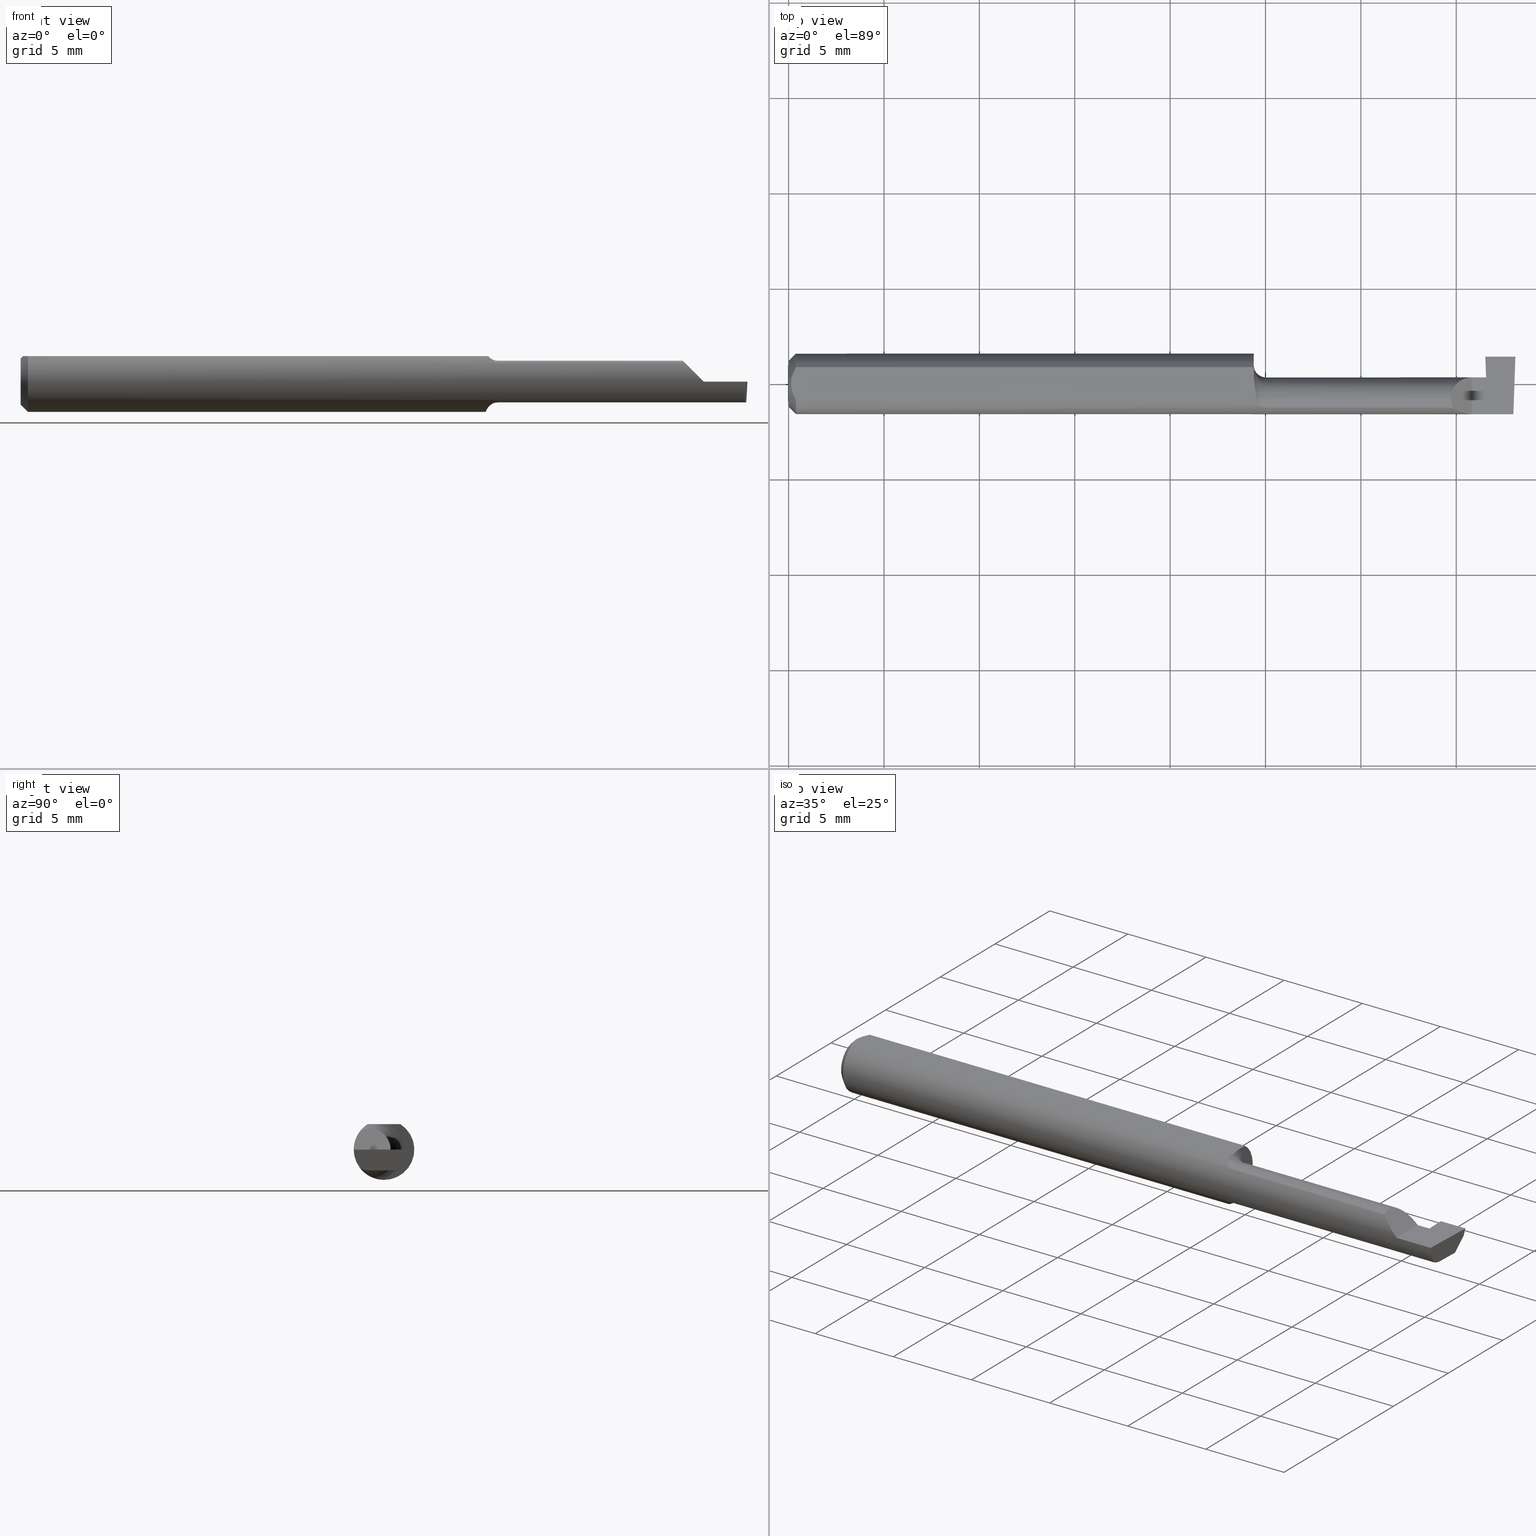
[diagram: canonical four-view strip — front | top / right | iso, engineering-drawing reading convention]
A machine part, canonical four-view strip (front | top / right | iso — engineering-drawing reading convention). The complete STEP part file that produces these views, byte-faithful:
ISO-10303-21;
HEADER;
FILE_DESCRIPTION (( 'STEP AP203' ),
    '1' );
FILE_NAME ('220578-GT061-8.STEP',
    '2024-07-17T22:20:59',
    ( '' ),
    ( '' ),
    'SwSTEP 2.0',
    'SolidWorks 2024',
    '' );
FILE_SCHEMA (( 'CONFIG_CONTROL_DESIGN' ));
ENDSEC;

DATA;
#1 = DIRECTION ( 'NONE',  ( -1.000000000000000000, -0.000000000000000000, -0.000000000000000000 ) ) ;
#2 = EDGE_CURVE ( 'NONE', #398, #244, #697, .T. ) ;
#3 = CIRCLE ( 'NONE', #15, 0.04300000000000000350 ) ;
#4 = LINE ( 'NONE', #331, #316 ) ;
#5 = APPROVAL_PERSON_ORGANIZATION ( #612, #651, #111 ) ;
#6 = DIRECTION ( 'NONE',  ( 1.000000000000000000, 0.000000000000000000, 0.000000000000000000 ) ) ;
#7 = VECTOR ( 'NONE', #10, 39.37007874015748143 ) ;
#8 = EDGE_LOOP ( 'NONE', ( #175, #228, #355, #48, #468, #635 ) ) ;
#9 = APPROVAL_STATUS ( 'not_yet_approved' ) ;
#10 = DIRECTION ( 'NONE',  ( -0.000000000000000000, 1.000000000000000000, -0.000000000000000000 ) ) ;
#11 = ORIENTED_EDGE ( 'NONE', *, *, #75, .F. ) ;
#12 = CARTESIAN_POINT ( 'NONE',  ( 1.371996840119888761, -0.04961864406779655651, 0.03800315988011148532 ) ) ;
#13 = ORIENTED_EDGE ( 'NONE', *, *, #402, .F. ) ;
#14 = SHAPE_DEFINITION_REPRESENTATION ( #22, #440 ) ;
#15 = AXIS2_PLACEMENT_3D ( 'NONE', #339, #213, #607 ) ;
#16 = EDGE_CURVE ( 'NONE', #155, #167, #554, .T. ) ;
#17 = ORIENTED_EDGE ( 'NONE', *, *, #356, .T. ) ;
#18 = EDGE_CURVE ( 'NONE', #33, #244, #94, .T. ) ;
#19 = COORDINATED_UNIVERSAL_TIME_OFFSET ( 8, 0, .BEHIND. ) ;
#20 = CARTESIAN_POINT ( 'NONE',  ( 0.9850000000000000977, -0.02949999999999999498, -0.04300000000000000350 ) ) ;
#21 = CARTESIAN_POINT ( 'NONE',  ( 1.400000000000000133, 0.05140441672027315501, -0.01400000000000000203 ) ) ;
#22 = PRODUCT_DEFINITION_SHAPE ( 'NONE', 'NONE',  #112 ) ;
#23 = COORDINATED_UNIVERSAL_TIME_OFFSET ( 8, 0, .BEHIND. ) ;
#24 = CARTESIAN_POINT ( 'NONE',  ( 0.01499999999999999944, 0.000000000000000000, 0.000000000000000000 ) ) ;
#25 = ORIENTED_EDGE ( 'NONE', *, *, #2, .T. ) ;
#26 = DIRECTION ( 'NONE',  ( -1.000000000000000000, -0.000000000000000000, -0.000000000000000000 ) ) ;
#27 = LINE ( 'NONE', #97, #556 ) ;
#28 = ORIENTED_EDGE ( 'NONE', *, *, #679, .F. ) ;
#29 = CC_DESIGN_SECURITY_CLASSIFICATION ( #587, ( #610 ) ) ;
#30 = AXIS2_PLACEMENT_3D ( 'NONE', #105, #332, #441 ) ;
#31 = CARTESIAN_POINT ( 'NONE',  ( 0.9613937318049208258, -0.02109576779706038435, -0.05901971984239203634 ) ) ;
#32 = ORIENTED_EDGE ( 'NONE', *, *, #196, .T. ) ;
#33 = VERTEX_POINT ( 'NONE', #638 ) ;
#34 = CARTESIAN_POINT ( 'NONE',  ( 1.495429628496687924, -0.04338920303173532389, -0.04130098846439800991 ) ) ;
#35 = CARTESIAN_POINT ( 'NONE',  ( 1.438667021569911331, 0.05140441672027315501, -0.01399999999999999856 ) ) ;
#36 = CARTESIAN_POINT ( 'NONE',  ( 0.9653849547540671594, -0.02950000000000013375, 0.05250000000000000500 ) ) ;
#37 = CARTESIAN_POINT ( 'NONE',  ( 1.383004118162293850, -0.05804917164768785831, 0.02699588183770621277 ) ) ;
#38 = ADVANCED_FACE ( 'NONE', ( #595 ), #147, .F. ) ;
#39 = AXIS2_PLACEMENT_3D ( 'NONE', #670, #67, #634 ) ;
#40 = VERTEX_POINT ( 'NONE', #263 ) ;
#41 = CARTESIAN_POINT ( 'NONE',  ( 1.495298500941084185, -0.04961864406779661202, -0.03800315988011145063 ) ) ;
#42 = DIRECTION ( 'NONE',  ( -1.000000000000000000, -0.000000000000000000, -0.000000000000000000 ) ) ;
#43 = CARTESIAN_POINT ( 'NONE',  ( 0.9850000000000000977, -0.02949999999999999498, -0.06800000000000000488 ) ) ;
#44 = APPROVAL ( #451, 'UNSPECIFIED' ) ;
#45 = EDGE_LOOP ( 'NONE', ( #82, #51, #200, #209, #179 ) ) ;
#46 = CARTESIAN_POINT ( 'NONE',  ( 0.000000000000000000, 0.000000000000000000, 0.000000000000000000 ) ) ;
#47 = DIRECTION ( 'NONE',  ( 0.7071067811865474617, 0.000000000000000000, -0.7071067811865475727 ) ) ;
#48 = ORIENTED_EDGE ( 'NONE', *, *, #588, .F. ) ;
#49 = EDGE_CURVE ( 'NONE', #33, #185, #143, .T. ) ;
#50 = LINE ( 'NONE', #146, #268 ) ;
#51 = ORIENTED_EDGE ( 'NONE', *, *, #625, .F. ) ;
#52 = CC_DESIGN_APPROVAL ( #376, ( #587 ) ) ;
#53 = AXIS2_PLACEMENT_3D ( 'NONE', #537, #249, #314 ) ;
#54 = CYLINDRICAL_SURFACE ( 'NONE', #619, 0.04300000000000000350 ) ;
#55 = CARTESIAN_POINT ( 'NONE',  ( 1.500000000000000222, -0.06250000000000001388, 0.05250000000000000500 ) ) ;
#56 = COORDINATED_UNIVERSAL_TIME_OFFSET ( 8, 0, .BEHIND. ) ;
#57 = CARTESIAN_POINT ( 'NONE',  ( 1.409999999999999920, -0.1000000000000000056, 1.102182119232617911E-17 ) ) ;
#58 = ORIENTED_EDGE ( 'NONE', *, *, #659, .F. ) ;
#59 = CALENDAR_DATE ( 2024, 17, 7 ) ;
#60 = DIRECTION ( 'NONE',  ( 1.000000000000000000, 0.000000000000000000, 0.000000000000000000 ) ) ;
#61 = VECTOR ( 'NONE', #181, 39.37007874015748143 ) ;
#62 = ORIENTED_EDGE ( 'NONE', *, *, #557, .T. ) ;
#63 = CARTESIAN_POINT ( 'NONE',  ( 0.9850000000000000977, -0.02950000000000000192, 0.06800000000000000488 ) ) ;
#64 = DIRECTION ( 'NONE',  ( 0.000000000000000000, -0.000000000000000000, 1.000000000000000000 ) ) ;
#65 = ORIENTED_EDGE ( 'NONE', *, *, #689, .F. ) ;
#66 = EDGE_CURVE ( 'NONE', #709, #204, #383, .T. ) ;
#67 = DIRECTION ( 'NONE',  ( -0.9990483607430195034, 0.03488753751661637786, 0.02617694830785934762 ) ) ;
#68 = EDGE_LOOP ( 'NONE', ( #649, #407 ) ) ;
#69 = CARTESIAN_POINT ( 'NONE',  ( 1.400000000000000133, 0.05650000000000000161, -7.164183775012044310E-19 ) ) ;
#70 = ORIENTED_EDGE ( 'NONE', *, *, #689, .T. ) ;
#71 = DIRECTION ( 'NONE',  ( -0.03487823687206274836, -0.001217974870087546639, 0.9993908270190957621 ) ) ;
#72 = CARTESIAN_POINT ( 'NONE',  ( 0.004999999999989314207, 8.235553591830799656E-16, 0.05250000000000000500 ) ) ;
#73 = ORIENTED_EDGE ( 'NONE', *, *, #49, .T. ) ;
#74 = CARTESIAN_POINT ( 'NONE',  ( 1.367000000000000215, -0.02950000000000000192, 0.04300000000000000350 ) ) ;
#75 = EDGE_CURVE ( 'NONE', #358, #398, #630, .T. ) ;
#76 = PERSON_AND_ORGANIZATION ( #79, #671 ) ;
#77 = CARTESIAN_POINT ( 'NONE',  ( 0.009676924495017957123, -0.02328413057436891712, 0.05250000000000001193 ) ) ;
#78 = VERTEX_POINT ( 'NONE', #592 ) ;
#79 = PERSON ( 'UNSPECIFIED', 'UNSPECIFIED', 'UNSPECIFIED', ('UNSPECIFIED'), ('UNSPECIFIED'), ('UNSPECIFIED') ) ;
#80 = PLANE ( 'NONE',  #141 ) ;
#81 = CIRCLE ( 'NONE', #176, 0.04749999999999999362 ) ;
#82 = ORIENTED_EDGE ( 'NONE', *, *, #501, .F. ) ;
#83 = VECTOR ( 'NONE', #6, 39.37007874015748143 ) ;
#84 = VECTOR ( 'NONE', #251, 39.37007874015748143 ) ;
#85 = CARTESIAN_POINT ( 'NONE',  ( 1.439743911843603064, 0.05656089874350439528, -0.04996954135095479921 ) ) ;
#86 = CARTESIAN_POINT ( 'NONE',  ( 0.9600000000000001865, -0.02950000000000000192, 0.000000000000000000 ) ) ;
#87 = EDGE_LOOP ( 'NONE', ( #65, #599, #534, #528 ) ) ;
#88 = EDGE_CURVE ( 'NONE', #171, #476, #164, .T. ) ;
#89 = CARTESIAN_POINT ( 'NONE',  ( 0.000000000000000000, 0.03391164991562636150, 0.05249999999999998418 ) ) ;
#90 = DIRECTION ( 'NONE',  ( 1.000000000000000000, 0.000000000000000000, 0.000000000000000000 ) ) ;
#91 = LINE ( 'NONE', #550, #338 ) ;
#92 = FACE_OUTER_BOUND ( 'NONE', #512, .T. ) ;
#93 = CARTESIAN_POINT ( 'NONE',  ( 1.384811183182043548, 0.01350000000000000332, 0.02518881681795692024 ) ) ;
#94 = LINE ( 'NONE', #642, #140 ) ;
#95 = CLOSED_SHELL ( 'NONE', ( #218, #478, #142, #333, #664, #344, #163, #245, #271, #636, #153, #369, #436, #205, #538, #678, #389, #455, #38, #347 ) ) ;
#96 = VERTEX_POINT ( 'NONE', #308 ) ;
#97 = CARTESIAN_POINT ( 'NONE',  ( 0.9600000000000001865, 0.01349999999999999811, 6.613092715395697606E-17 ) ) ;
#98 = DIRECTION ( 'NONE',  ( -1.000000000000000000, -0.000000000000000000, -0.000000000000000000 ) ) ;
#99 = ORIENTED_EDGE ( 'NONE', *, *, #536, .F. ) ;
#100 = EDGE_CURVE ( 'NONE', #96, #283, #605, .T. ) ;
#101 = ORIENTED_EDGE ( 'NONE', *, *, #290, .F. ) ;
#102 = CARTESIAN_POINT ( 'NONE',  ( 0.9600000000000001865, -0.02950000000000000192, 0.04300000000000000350 ) ) ;
#103 = DIRECTION ( 'NONE',  ( 0.03487821100177018047, 0.000000000000000000, -0.9993915701051895306 ) ) ;
#104 =( NAMED_UNIT ( * ) PLANE_ANGLE_UNIT ( ) SI_UNIT ( $, .RADIAN. ) );
#105 = CARTESIAN_POINT ( 'NONE',  ( 1.409999999999999920, -0.1000000000000000056, 1.102182119232617911E-17 ) ) ;
#106 = CARTESIAN_POINT ( 'NONE',  ( 1.438000000000000167, 0.05650000000000000161, -7.164183775012044310E-19 ) ) ;
#107 = PLANE ( 'NONE',  #362 ) ;
#108 = CARTESIAN_POINT ( 'NONE',  ( 0.9652401474686986838, -0.03391164991562652803, 0.05250000000000000500 ) ) ;
#109 = EDGE_CURVE ( 'NONE', #617, #337, #692, .T. ) ;
#110 = ORIENTED_EDGE ( 'NONE', *, *, #500, .T. ) ;
#111 = APPROVAL_ROLE ( '' ) ;
#112 = PRODUCT_DEFINITION ( 'UNKNOWN', '', #610, #442 ) ;
#113 = CARTESIAN_POINT ( 'NONE',  ( 1.499269797026868467, 0.04837060006457220840, -0.01703381665570093823 ) ) ;
#114 =( BOUNDED_CURVE ( )  B_SPLINE_CURVE ( 3, ( #542, #601, #93, #604 ),
 .UNSPECIFIED., .F., .T. ) 
 B_SPLINE_CURVE_WITH_KNOTS ( ( 4, 4 ),
 ( 0.000000000000000000, 1.570796326794896558 ),
 .UNSPECIFIED. ) 
 CURVE ( )  GEOMETRIC_REPRESENTATION_ITEM ( )  RATIONAL_B_SPLINE_CURVE ( ( 1.000000000000000000, 0.8047378541243649375, 0.8047378541243649375, 1.000000000000000000 ) ) 
 REPRESENTATION_ITEM ( '' )  );
#115 = ORIENTED_EDGE ( 'NONE', *, *, #16, .T. ) ;
#116 = DIRECTION ( 'NONE',  ( 1.000000000000000000, 0.000000000000000000, 0.000000000000000000 ) ) ;
#117 = CARTESIAN_POINT ( 'NONE',  ( 1.440999524473456361, -0.02950000000000000192, -0.04300000000000001044 ) ) ;
#118 = AXIS2_PLACEMENT_3D ( 'NONE', #24, #680, #242 ) ;
#119 = ORIENTED_EDGE ( 'NONE', *, *, #477, .T. ) ;
#120 = EDGE_CURVE ( 'NONE', #705, #413, #91, .T. ) ;
#121 = CALENDAR_DATE ( 2024, 17, 7 ) ;
#122 = CARTESIAN_POINT ( 'NONE',  ( 0.9798934400651082566, -0.04899547455819867198, 0.03883101267846624655 ) ) ;
#123 = EDGE_LOOP ( 'NONE', ( #573, #598, #437, #193, #446 ) ) ;
#124 = APPROVAL_DATE_TIME ( #287, #44 ) ;
#125 = DIRECTION ( 'NONE',  ( -0.03489949670250192676, -0.9993908270190955401, 0.000000000000000000 ) ) ;
#126 = ORIENTED_EDGE ( 'NONE', *, *, #290, .T. ) ;
#127 = AXIS2_PLACEMENT_3D ( 'NONE', #427, #548, #259 ) ;
#128 = CARTESIAN_POINT ( 'NONE',  ( 0.9850000000000000977, -0.04961864406779661202, 0.03800315988011145063 ) ) ;
#129 = AXIS2_PLACEMENT_3D ( 'NONE', #208, #502, #668 ) ;
#130 = ORIENTED_EDGE ( 'NONE', *, *, #300, .T. ) ;
#131 = CARTESIAN_POINT ( 'NONE',  ( 1.371996840119888761, -0.04961864406779655651, 0.03800315988011148532 ) ) ;
#132 = FACE_OUTER_BOUND ( 'NONE', #285, .T. ) ;
#133 = B_SPLINE_CURVE_WITH_KNOTS ( 'NONE', 3,
 ( #370, #434, #31, #307, #320, #246 ),
 .UNSPECIFIED., .F., .F.,
 ( 4, 2, 4 ),
 ( 0.0009204511414458096822, 0.001283705467946031535, 0.001646959794446253497 ),
 .UNSPECIFIED. ) ;
#134 = ORIENTED_EDGE ( 'NONE', *, *, #120, .T. ) ;
#135 = DIRECTION ( 'NONE',  ( -0.04472628571147610477, 0.3416778765727995215, 0.9387522506109683418 ) ) ;
#136 = ORIENTED_EDGE ( 'NONE', *, *, #401, .T. ) ;
#137 = CARTESIAN_POINT ( 'NONE',  ( 0.9850000000000000977, -0.02950000000000000192, 0.04300000000000000350 ) ) ;
#138 = AXIS2_PLACEMENT_3D ( 'NONE', #710, #353, #580 ) ;
#139 = CARTESIAN_POINT ( 'NONE',  ( 1.441001355602298473, -1.425152629442045127, -0.04475337468571159716 ) ) ;
#140 = VECTOR ( 'NONE', #266, 39.37007874015748143 ) ;
#141 = AXIS2_PLACEMENT_3D ( 'NONE', #85, #194, #540 ) ;
#142 = ADVANCED_FACE ( 'NONE', ( #260 ), #267, .F. ) ;
#143 =( BOUNDED_CURVE ( )  B_SPLINE_CURVE ( 3, ( #364, #708, #195, #154 ),
 .UNSPECIFIED., .F., .T. ) 
 B_SPLINE_CURVE_WITH_KNOTS ( ( 4, 4 ),
 ( 6.273290845822960371, 6.925979714601155912 ),
 .UNSPECIFIED. ) 
 CURVE ( )  GEOMETRIC_REPRESENTATION_ITEM ( )  RATIONAL_B_SPLINE_CURVE ( ( 1.000000000000000000, 0.9648137202604427642, 0.9648137202604427642, 1.000000000000000000 ) ) 
 REPRESENTATION_ITEM ( '' )  );
#144 = EDGE_CURVE ( 'NONE', #617, #571, #704, .T. ) ;
#145 = CARTESIAN_POINT ( 'NONE',  ( 0.9652271794864765164, -0.03459070527865117789, -0.05237439105173812698 ) ) ;
#146 = CARTESIAN_POINT ( 'NONE',  ( 2.249639673992780117E-32, -0.06250000000000000000, 1.836970198721027469E-16 ) ) ;
#147 = PLANE ( 'NONE',  #350 ) ;
#148 = CYLINDRICAL_SURFACE ( 'NONE', #53, 0.04300000000000000350 ) ;
#149 = CARTESIAN_POINT ( 'NONE',  ( 1.494536378329570425, -0.06245432188394240552, -0.04998286624877784634 ) ) ;
#150 = ORIENTED_EDGE ( 'NONE', *, *, #701, .F. ) ;
#151 = CARTESIAN_POINT ( 'NONE',  ( 1.494541555929521870, -0.09980938693283122887, 6.684666059235883717E-19 ) ) ;
#152 = CARTESIAN_POINT ( 'NONE',  ( 0.01499999999999999771, 0.03391164991562633374, 0.05250000000000000500 ) ) ;
#153 = ADVANCED_FACE ( 'NONE', ( #220 ), #107, .F. ) ;
#154 = CARTESIAN_POINT ( 'NONE',  ( 1.495842932763845390, -0.06249997390100387601, -5.711719386471155157E-05 ) ) ;
#155 = VERTEX_POINT ( 'NONE', #276 ) ;
#156 = CARTESIAN_POINT ( 'NONE',  ( 0.9600000000000001865, 0.1134999999999999759, 0.000000000000000000 ) ) ;
#157 = CARTESIAN_POINT ( 'NONE',  ( 1.497682675024521792, 0.02240441672027304598, -0.04300000000000001044 ) ) ;
#158 = ORIENTED_EDGE ( 'NONE', *, *, #300, .F. ) ;
#159 = CARTESIAN_POINT ( 'NONE',  ( 0.9600000000000001865, 0.01371747331809206050, 0.05250000000000000500 ) ) ;
#160 = DIRECTION ( 'NONE',  ( 1.000000000000000000, 0.000000000000000000, 0.000000000000000000 ) ) ;
#161 = CARTESIAN_POINT ( 'NONE',  ( 0.9653849547540671594, -0.02950000000000013375, 0.05250000000000000500 ) ) ;
#162 = CARTESIAN_POINT ( 'NONE',  ( 1.440692425072330529, 0.02240441672027304251, -0.04300000000000001044 ) ) ;
#163 = ADVANCED_FACE ( 'NONE', ( #555 ), #327, .T. ) ;
#164 = CIRCLE ( 'NONE', #303, 0.06800000000000000488 ) ;
#165 = MECHANICAL_CONTEXT ( 'NONE', #695, 'mechanical' ) ;
#166 = CARTESIAN_POINT ( 'NONE',  ( 1.500000000000000222, 0.02240441672027303557, -0.04300000000000001044 ) ) ;
#167 = VERTEX_POINT ( 'NONE', #108 ) ;
#168 = CC_DESIGN_DATE_AND_TIME_ASSIGNMENT ( #675, #626, ( #587 ) ) ;
#169 =( NAMED_UNIT ( * ) SI_UNIT ( $, .STERADIAN. ) SOLID_ANGLE_UNIT ( ) );
#170 = LINE ( 'NONE', #387, #379 ) ;
#171 = VERTEX_POINT ( 'NONE', #227 ) ;
#172 = CARTESIAN_POINT ( 'NONE',  ( 0.9640045281090322549, -0.01491326039667815496, 0.05250000000000001193 ) ) ;
#173 = DIRECTION ( 'NONE',  ( -0.03654090288697374456, -0.3417917279781193529, -0.9390650547762576794 ) ) ;
#174 = EDGE_CURVE ( 'NONE', #516, #337, #270, .T. ) ;
#175 = ORIENTED_EDGE ( 'NONE', *, *, #217, .F. ) ;
#176 = AXIS2_PLACEMENT_3D ( 'NONE', #296, #241, #686 ) ;
#177 = VECTOR ( 'NONE', #616, 39.37007874015748854 ) ;
#178 = VECTOR ( 'NONE', #71, 39.37007874015748854 ) ;
#179 = ORIENTED_EDGE ( 'NONE', *, *, #2, .F. ) ;
#180 = APPROVAL_STATUS ( 'not_yet_approved' ) ;
#181 = DIRECTION ( 'NONE',  ( 0.7071067811865474617, 8.659560562354934091E-17, 0.7071067811865475727 ) ) ;
#182 = ORIENTED_EDGE ( 'NONE', *, *, #120, .F. ) ;
#183 = CARTESIAN_POINT ( 'NONE',  ( 1.440999524473456361, -0.02950000000000000192, -0.04300000000000001044 ) ) ;
#184 = B_SPLINE_CURVE_WITH_KNOTS ( 'NONE', 3,
 ( #342, #620, #297, #357, #684, #122, #404, #128 ),
 .UNSPECIFIED., .F., .F.,
 ( 4, 2, 2, 4 ),
 ( 3.888235372646800376E-07, 0.0003893917635814237842, 0.0005838932336035033369, 0.0007783947036255828896 ),
 .UNSPECIFIED. ) ;
#185 = VERTEX_POINT ( 'NONE', #565 ) ;
#186 =( GEOMETRIC_REPRESENTATION_CONTEXT ( 3 ) GLOBAL_UNCERTAINTY_ASSIGNED_CONTEXT ( ( #657 ) ) GLOBAL_UNIT_ASSIGNED_CONTEXT ( ( #385, #104, #169 ) ) REPRESENTATION_CONTEXT ( 'NONE', 'WORKASPACE' ) );
#187 = FACE_OUTER_BOUND ( 'NONE', #685, .T. ) ;
#188 = EDGE_LOOP ( 'NONE', ( #115, #566, #392, #457, #110, #264, #136 ) ) ;
#189 = DIRECTION ( 'NONE',  ( 0.000000000000000000, 0.000000000000000000, 1.000000000000000000 ) ) ;
#190 = APPLICATION_CONTEXT ( 'configuration controlled 3d designs of mechanical parts and assemblies' ) ;
#191 = ORIENTED_EDGE ( 'NONE', *, *, #411, .F. ) ;
#192 = DIRECTION ( 'NONE',  ( 0.000000000000000000, 0.000000000000000000, 1.000000000000000000 ) ) ;
#193 = ORIENTED_EDGE ( 'NONE', *, *, #269, .T. ) ;
#194 = DIRECTION ( 'NONE',  ( 0.9987827668610290699, 0.03485699000042918883, 0.03489949669461413218 ) ) ;
#195 = CARTESIAN_POINT ( 'NONE',  ( 1.495480616183712197, -0.06248732152722600436, -0.01390186301200442912 ) ) ;
#196 = EDGE_CURVE ( 'NONE', #413, #453, #170, .T. ) ;
#197 = CARTESIAN_POINT ( 'NONE',  ( 0.9790847360483329043, -0.04877754693342478687, -0.03912413147191610985 ) ) ;
#198 = DIRECTION ( 'NONE',  ( 0.000000000000000000, 0.000000000000000000, 1.000000000000000000 ) ) ;
#199 = CIRCLE ( 'NONE', #118, 0.06250000000000000000 ) ;
#200 = ORIENTED_EDGE ( 'NONE', *, *, #477, .F. ) ;
#201 = DIRECTION ( 'NONE',  ( -1.000000000000000000, -0.000000000000000000, -0.000000000000000000 ) ) ;
#202 = DIRECTION ( 'NONE',  ( -0.000000000000000000, 0.000000000000000000, 1.000000000000000000 ) ) ;
#203 = B_SPLINE_CURVE_WITH_KNOTS ( 'NONE', 3,
 ( #694, #206, #197, #430, #547, #640, #145, #365 ),
 .UNSPECIFIED., .F., .F.,
 ( 4, 2, 2, 4 ),
 ( 1.967049449814725299E-07, 0.0002302603140701871016, 0.0004603239231953926949, 0.0009204511414458096822 ),
 .UNSPECIFIED. ) ;
#204 = VERTEX_POINT ( 'NONE', #397 ) ;
#205 = ADVANCED_FACE ( 'NONE', ( #452 ), #713, .T. ) ;
#206 = CARTESIAN_POINT ( 'NONE',  ( 0.9819304295622112155, -0.04961864406779661202, -0.03800315988011144369 ) ) ;
#207 = CARTESIAN_POINT ( 'NONE',  ( 0.9653849547540669374, -0.03023591544404562875, 0.05250000000000001193 ) ) ;
#208 = CARTESIAN_POINT ( 'NONE',  ( 0.9850000000000000977, -0.02950000000000000192, 0.000000000000000000 ) ) ;
#209 = ORIENTED_EDGE ( 'NONE', *, *, #18, .T. ) ;
#210 = LINE ( 'NONE', #102, #629 ) ;
#211 = DIRECTION ( 'NONE',  ( 0.000000000000000000, -1.707404996040164265E-16, 1.000000000000000000 ) ) ;
#212 = LOCAL_TIME ( 15, 20, 59.00000000000000000, #615 ) ;
#213 = DIRECTION ( 'NONE',  ( -1.000000000000000000, -0.000000000000000000, -0.000000000000000000 ) ) ;
#214 = DIRECTION ( 'NONE',  ( 0.000000000000000000, 0.000000000000000000, 1.000000000000000000 ) ) ;
#215 = DIRECTION ( 'NONE',  ( 0.000000000000000000, 0.000000000000000000, 1.000000000000000000 ) ) ;
#216 = FACE_OUTER_BOUND ( 'NONE', #418, .T. ) ;
#217 = EDGE_CURVE ( 'NONE', #295, #78, #543, .T. ) ;
#218 = ADVANCED_FACE ( 'NONE', ( #507 ), #54, .T. ) ;
#219 = CARTESIAN_POINT ( 'NONE',  ( 0.9612098179869770220, -0.0002889899750471561549, 0.05250000000000001193 ) ) ;
#220 = FACE_OUTER_BOUND ( 'NONE', #68, .T. ) ;
#221 = EDGE_LOOP ( 'NONE', ( #277, #432, #414, #343, #428 ) ) ;
#222 = VECTOR ( 'NONE', #652, 39.37007874015748143 ) ;
#223 = DIRECTION ( 'NONE',  ( -1.224646799147351482E-16, 0.000000000000000000, -1.000000000000000000 ) ) ;
#224 = ORIENTED_EDGE ( 'NONE', *, *, #509, .T. ) ;
#225 = CC_DESIGN_PERSON_AND_ORGANIZATION_ASSIGNMENT ( #496, #272, ( #456 ) ) ;
#226 = PERSON_AND_ORGANIZATION ( #79, #671 ) ;
#227 = CARTESIAN_POINT ( 'NONE',  ( 0.9600000000000001865, 0.01371747331809206050, 0.05250000000000000500 ) ) ;
#228 = ORIENTED_EDGE ( 'NONE', *, *, #501, .T. ) ;
#229 = DIRECTION ( 'NONE',  ( -1.000000000000000000, -0.000000000000000000, -0.000000000000000000 ) ) ;
#230 = ORIENTED_EDGE ( 'NONE', *, *, #293, .F. ) ;
#231 = CIRCLE ( 'NONE', #517, 0.02500000000000000486 ) ;
#232 = VECTOR ( 'NONE', #60, 39.37007874015748143 ) ;
#233 = CARTESIAN_POINT ( 'NONE',  ( 1.495870132852629597, -0.02950000000000001232, -0.04300000000000001044 ) ) ;
#234 = ORIENTED_EDGE ( 'NONE', *, *, #536, .T. ) ;
#235 = PERSON_AND_ORGANIZATION ( #79, #671 ) ;
#236 = CARTESIAN_POINT ( 'NONE',  ( 0.004999999999998634009, -0.005964525438754507587, 0.05250000000000000500 ) ) ;
#237 = ORIENTED_EDGE ( 'NONE', *, *, #293, .T. ) ;
#238 = EDGE_CURVE ( 'NONE', #476, #508, #687, .T. ) ;
#239 = LINE ( 'NONE', #282, #672 ) ;
#240 = ORIENTED_EDGE ( 'NONE', *, *, #659, .T. ) ;
#241 = DIRECTION ( 'NONE',  ( -1.000000000000000000, -0.000000000000000000, -0.000000000000000000 ) ) ;
#242 = DIRECTION ( 'NONE',  ( 0.000000000000000000, 0.000000000000000000, 1.000000000000000000 ) ) ;
#243 = AXIS2_PLACEMENT_3D ( 'NONE', #43, #488, #211 ) ;
#244 = VERTEX_POINT ( 'NONE', #492 ) ;
#245 = ADVANCED_FACE ( 'NONE', ( #662 ), #497, .F. ) ;
#246 = CARTESIAN_POINT ( 'NONE',  ( 0.9600000000000001865, -0.002584745762711872230, -0.06244652984227500730 ) ) ;
#247 = EDGE_LOOP ( 'NONE', ( #648, #230, #380, #224, #158 ) ) ;
#248 = ORIENTED_EDGE ( 'NONE', *, *, #144, .F. ) ;
#249 = DIRECTION ( 'NONE',  ( -1.000000000000000000, -0.000000000000000000, -0.000000000000000000 ) ) ;
#250 = DIRECTION ( 'NONE',  ( 0.9993915692023304098, -4.250667839518830097E-05, 0.03487821097026089917 ) ) ;
#251 = DIRECTION ( 'NONE',  ( -1.000000000000000000, -0.000000000000000000, -0.000000000000000000 ) ) ;
#252 = CARTESIAN_POINT ( 'NONE',  ( 1.368699011535602361, -0.04338920303173529613, 0.04130098846439799604 ) ) ;
#253 = AXIS2_PLACEMENT_3D ( 'NONE', #46, #26, #324 ) ;
#254 = CARTESIAN_POINT ( 'NONE',  ( 1.439964516529928407, 0.04326171128281034589, -0.04300000000000001044 ) ) ;
#255 = LOCAL_TIME ( 15, 20, 59.00000000000000000, #56 ) ;
#256 = AXIS2_PLACEMENT_3D ( 'NONE', #400, #406, #627 ) ;
#257 = EDGE_CURVE ( 'NONE', #283, #632, #608, .T. ) ;
#258 = CARTESIAN_POINT ( 'NONE',  ( 1.495623993172869648, -0.03654851821258212063, -0.04300000000000001044 ) ) ;
#259 = DIRECTION ( 'NONE',  ( 0.000000000000000000, -0.7071067811865487940, -0.7071067811865462405 ) ) ;
#260 = FACE_OUTER_BOUND ( 'NONE', #261, .T. ) ;
#261 = EDGE_LOOP ( 'NONE', ( #531, #545, #25 ) ) ;
#262 = CARTESIAN_POINT ( 'NONE',  ( 1.500000000000000222, 0.04535691788470638808, -0.04300000000000001044 ) ) ;
#263 = CARTESIAN_POINT ( 'NONE',  ( 1.495844428430481710, -0.06249999999999996531, -4.014002452596986816E-18 ) ) ;
#264 = ORIENTED_EDGE ( 'NONE', *, *, #466, .T. ) ;
#265 = CARTESIAN_POINT ( 'NONE',  ( 1.500000000000000222, -0.02950000000000000885, -0.04300000000000001044 ) ) ;
#266 = DIRECTION ( 'NONE',  ( -1.000000000000000000, -0.000000000000000000, -0.000000000000000000 ) ) ;
#267 = TOROIDAL_SURFACE ( 'NONE', #129, 0.06800000000000000488, 0.02500000000000000139 ) ;
#268 = VECTOR ( 'NONE', #423, 39.37007874015748143 ) ;
#269 = EDGE_CURVE ( 'NONE', #295, #96, #439, .T. ) ;
#270 = LINE ( 'NONE', #570, #83 ) ;
#271 = ADVANCED_FACE ( 'NONE', ( #216 ), #656, .F. ) ;
#272 = PERSON_AND_ORGANIZATION_ROLE ( 'design_owner' ) ;
#273 = CC_DESIGN_PERSON_AND_ORGANIZATION_ASSIGNMENT ( #564, #443, ( #112 ) ) ;
#274 = CARTESIAN_POINT ( 'NONE',  ( 1.441002708436273538, 0.04535942719034390114, -0.04300000000000001044 ) ) ;
#275 =( LENGTH_UNIT ( ) NAMED_UNIT ( * ) SI_UNIT ( $, .METRE. ) );
#276 = CARTESIAN_POINT ( 'NONE',  ( 0.01499999999999999944, -0.03391164991562636150, 0.05249999999999998418 ) ) ;
#277 = ORIENTED_EDGE ( 'NONE', *, *, #326, .F. ) ;
#278 = AXIS2_PLACEMENT_3D ( 'NONE', #386, #1, #391 ) ;
#279 = DIRECTION ( 'NONE',  ( 1.000000000000000000, 0.000000000000000000, 0.000000000000000000 ) ) ;
#280 = ORIENTED_EDGE ( 'NONE', *, *, #425, .F. ) ;
#281 = DIRECTION ( 'NONE',  ( 0.000000000000000000, 0.000000000000000000, -1.000000000000000000 ) ) ;
#282 = CARTESIAN_POINT ( 'NONE',  ( 1.443530545453516556, -0.1019707540796309653, 6.915513675994789630E-18 ) ) ;
#283 = VERTEX_POINT ( 'NONE', #162 ) ;
#284 = LINE ( 'NONE', #416, #493 ) ;
#285 = EDGE_LOOP ( 'NONE', ( #134, #32, #669, #17 ) ) ;
#286 = LOCAL_TIME ( 15, 20, 59.00000000000000000, #19 ) ;
#287 = DATE_AND_TIME ( #633, #301 ) ;
#288 = VECTOR ( 'NONE', #135, 39.37007874015748854 ) ;
#289 = DIRECTION ( 'NONE',  ( 0.000000000000000000, -0.9396926207859082059, 0.3420201433256693235 ) ) ;
#290 = EDGE_CURVE ( 'NONE', #453, #632, #499, .T. ) ;
#291 = ORIENTED_EDGE ( 'NONE', *, *, #425, .T. ) ;
#292 = CARTESIAN_POINT ( 'NONE',  ( 0.9850000000000000977, -0.04961864406779661202, 0.03800315988011145063 ) ) ;
#293 = EDGE_CURVE ( 'NONE', #283, #465, #284, .T. ) ;
#294 = CARTESIAN_POINT ( 'NONE',  ( 0.01216049014016022493, -0.02867836381244416935, 0.05250000000000000500 ) ) ;
#295 = VERTEX_POINT ( 'NONE', #183 ) ;
#296 = CARTESIAN_POINT ( 'NONE',  ( 0.000000000000000000, 0.000000000000000000, 0.000000000000000000 ) ) ;
#297 = CARTESIAN_POINT ( 'NONE',  ( 0.9692468641874941726, -0.04154820402037472105, 0.04686879970594857309 ) ) ;
#298 = MANIFOLD_SOLID_BREP ( 'Front Angle', #95 ) ;
#299 = EDGE_LOOP ( 'NONE', ( #99, #603, #182, #130, #13, #248 ) ) ;
#300 = EDGE_CURVE ( 'NONE', #705, #78, #239, .T. ) ;
#301 = LOCAL_TIME ( 15, 20, 59.00000000000000000, #396 ) ;
#302 = CARTESIAN_POINT ( 'NONE',  ( 0.01499999999999999771, 0.03391164991562633374, 0.05250000000000000500 ) ) ;
#303 = AXIS2_PLACEMENT_3D ( 'NONE', #86, #378, #602 ) ;
#304 = AXIS2_PLACEMENT_3D ( 'NONE', #558, #160, #613 ) ;
#305 = ORIENTED_EDGE ( 'NONE', *, *, #257, .F. ) ;
#306 = B_SPLINE_CURVE_WITH_KNOTS ( 'NONE', 3,
 ( #484, #469, #553, #207, #408 ),
 .UNSPECIFIED., .F., .F.,
 ( 4, 1, 4 ),
 ( 0.008235061335628374168, 0.008289682461098419469, 0.008344303586568464770 ),
 .UNSPECIFIED. ) ;
#307 = CARTESIAN_POINT ( 'NONE',  ( 0.9602519097259804015, -0.01202796067517313515, -0.06151168109569449260 ) ) ;
#308 = CARTESIAN_POINT ( 'NONE',  ( 1.441001355602298251, 0.01355240484302756843, -0.04300000000000001044 ) ) ;
#309 = ORIENTED_EDGE ( 'NONE', *, *, #588, .T. ) ;
#310 = CARTESIAN_POINT ( 'NONE',  ( 0.004999999999989314207, 8.235553591830799656E-16, 0.05250000000000000500 ) ) ;
#311 = CARTESIAN_POINT ( 'NONE',  ( 1.409999999999999920, -0.06250000000000000000, 1.102182119232617911E-17 ) ) ;
#312 = CARTESIAN_POINT ( 'NONE',  ( 1.409999999999999920, -0.06250000000000000000, 1.102182119232617911E-17 ) ) ;
#313 = ORIENTED_EDGE ( 'NONE', *, *, #500, .F. ) ;
#314 = DIRECTION ( 'NONE',  ( 0.000000000000000000, 0.000000000000000000, 1.000000000000000000 ) ) ;
#315 = CARTESIAN_POINT ( 'NONE',  ( 0.01499999999999999944, 0.000000000000000000, 0.000000000000000000 ) ) ;
#316 = VECTOR ( 'NONE', #438, 39.37007874015748143 ) ;
#317 = DIRECTION ( 'NONE',  ( 1.000000000000000000, 0.000000000000000000, 0.000000000000000000 ) ) ;
#318 = EDGE_CURVE ( 'NONE', #204, #155, #199, .T. ) ;
#319 = ORIENTED_EDGE ( 'NONE', *, *, #568, .T. ) ;
#320 = CARTESIAN_POINT ( 'NONE',  ( 0.9600000000000001865, -0.007349427763250789350, -0.06224931325325608333 ) ) ;
#321 = LINE ( 'NONE', #149, #530 ) ;
#322 = ORIENTED_EDGE ( 'NONE', *, *, #18, .F. ) ;
#323 = EDGE_LOOP ( 'NONE', ( #654, #28, #563 ) ) ;
#324 = DIRECTION ( 'NONE',  ( 0.000000000000000000, 0.000000000000000000, 1.000000000000000000 ) ) ;
#325 = ORIENTED_EDGE ( 'NONE', *, *, #109, .T. ) ;
#326 = EDGE_CURVE ( 'NONE', #368, #417, #471, .T. ) ;
#327 = PLANE ( 'NONE',  #653 ) ;
#328 = AXIS2_PLACEMENT_3D ( 'NONE', #641, #90, #699 ) ;
#329 = LOCAL_TIME ( 15, 20, 59.00000000000000000, #23 ) ;
#330 = CARTESIAN_POINT ( 'NONE',  ( 1.439500677244090587, 0.01349999999999997383, 1.224154007838118068E-17 ) ) ;
#331 = CARTESIAN_POINT ( 'NONE',  ( 0.9600000000000001865, -0.06250000000000001388, 0.05250000000000000500 ) ) ;
#332 = DIRECTION ( 'NONE',  ( -0.7071067811865489050, 0.000000000000000000, -0.7071067811865461294 ) ) ;
#333 = ADVANCED_FACE ( 'NONE', ( #511 ), #410, .F. ) ;
#334 = ORIENTED_EDGE ( 'NONE', *, *, #174, .T. ) ;
#335 = CALENDAR_DATE ( 2024, 17, 7 ) ;
#336 = DIRECTION ( 'NONE',  ( -0.04317993108638109451, -0.7064472710512013087, -0.7064472710511987552 ) ) ;
#337 = VERTEX_POINT ( 'NONE', #12 ) ;
#338 = VECTOR ( 'NONE', #700, 39.37007874015748143 ) ;
#339 = CARTESIAN_POINT ( 'NONE',  ( 0.9850000000000000977, -0.02950000000000000192, 0.000000000000000000 ) ) ;
#340 = CARTESIAN_POINT ( 'NONE',  ( 1.441000595818230590, -0.004311183182043083414, -0.04299999999999998962 ) ) ;
#341 = EDGE_LOOP ( 'NONE', ( #11, #291, #623, #405, #70, #348 ) ) ;
#342 = CARTESIAN_POINT ( 'NONE',  ( 0.9652401474686986838, -0.03391164991562652803, 0.05250000000000000500 ) ) ;
#343 = ORIENTED_EDGE ( 'NONE', *, *, #318, .T. ) ;
#344 = ADVANCED_FACE ( 'NONE', ( #585 ), #690, .T. ) ;
#345 = SECURITY_CLASSIFICATION_LEVEL ( 'unclassified' ) ;
#346 = PLANE ( 'NONE',  #674 ) ;
#347 = ADVANCED_FACE ( 'NONE', ( #187 ), #461, .F. ) ;
#348 = ORIENTED_EDGE ( 'NONE', *, *, #559, .T. ) ;
#349 = CIRCLE ( 'NONE', #586, 0.06250000000000000000 ) ;
#350 = AXIS2_PLACEMENT_3D ( 'NONE', #139, #250, #103 ) ;
#351 = CARTESIAN_POINT ( 'NONE',  ( 0.9850000000000000977, -0.02950000000000000192, 0.000000000000000000 ) ) ;
#352 = VERTEX_POINT ( 'NONE', #233 ) ;
#353 = DIRECTION ( 'NONE',  ( 1.000000000000000000, 0.000000000000000000, 0.000000000000000000 ) ) ;
#354 = DIRECTION ( 'NONE',  ( -1.000000000000000000, -0.000000000000000000, -0.000000000000000000 ) ) ;
#355 = ORIENTED_EDGE ( 'NONE', *, *, #559, .F. ) ;
#356 = EDGE_CURVE ( 'NONE', #465, #705, #467, .T. ) ;
#357 = CARTESIAN_POINT ( 'NONE',  ( 0.9739222550994101057, -0.04585862128403012800, 0.04251363034047612316 ) ) ;
#358 = VERTEX_POINT ( 'NONE', #515 ) ;
#359 = AXIS2_PLACEMENT_3D ( 'NONE', #487, #98, #644 ) ;
#360 = CC_DESIGN_APPROVAL ( #44, ( #610 ) ) ;
#361 = CARTESIAN_POINT ( 'NONE',  ( 0.9600000000000001865, -0.002584745762711872230, -0.06244652984227500730 ) ) ;
#362 = AXIS2_PLACEMENT_3D ( 'NONE', #449, #279, #665 ) ;
#363 = AXIS2_PLACEMENT_3D ( 'NONE', #156, #475, #650 ) ;
#364 = CARTESIAN_POINT ( 'NONE',  ( 1.495298500941084185, -0.04961864406779661202, -0.03800315988011145063 ) ) ;
#365 = CARTESIAN_POINT ( 'NONE',  ( 0.9635853400962794968, -0.02949999999999962028, -0.05509990925582384375 ) ) ;
#366 = PLANE ( 'NONE',  #377 ) ;
#367 = CARTESIAN_POINT ( 'NONE',  ( 0.01499999999999999944, 0.000000000000000000, -0.06250000000000000000 ) ) ;
#368 = VERTEX_POINT ( 'NONE', #676 ) ;
#369 = ADVANCED_FACE ( 'NONE', ( #574 ), #481, .F. ) ;
#370 = CARTESIAN_POINT ( 'NONE',  ( 0.9635853400962794968, -0.02949999999999962028, -0.05509990925582384375 ) ) ;
#371 = FACE_OUTER_BOUND ( 'NONE', #691, .T. ) ;
#372 = EDGE_CURVE ( 'NONE', #167, #516, #184, .T. ) ;
#373 = ORIENTED_EDGE ( 'NONE', *, *, #16, .F. ) ;
#374 = ORIENTED_EDGE ( 'NONE', *, *, #581, .F. ) ;
#375 = FACE_OUTER_BOUND ( 'NONE', #323, .T. ) ;
#376 = APPROVAL ( #180, 'UNSPECIFIED' ) ;
#377 = AXIS2_PLACEMENT_3D ( 'NONE', #262, #202, #707 ) ;
#378 = DIRECTION ( 'NONE',  ( -1.000000000000000000, -0.000000000000000000, -0.000000000000000000 ) ) ;
#379 = VECTOR ( 'NONE', #173, 39.37007874015748854 ) ;
#380 = ORIENTED_EDGE ( 'NONE', *, *, #100, .F. ) ;
#381 = DIRECTION ( 'NONE',  ( 1.000000000000000000, 0.000000000000000000, 0.000000000000000000 ) ) ;
#382 = FACE_OUTER_BOUND ( 'NONE', #123, .T. ) ;
#383 = LINE ( 'NONE', #367, #567 ) ;
#384 = EDGE_CURVE ( 'NONE', #632, #352, #622, .T. ) ;
#385 =( CONVERSION_BASED_UNIT ( 'INCH', #448 ) LENGTH_UNIT ( ) NAMED_UNIT ( #474 ) );
#386 = CARTESIAN_POINT ( 'NONE',  ( 0.9600000000000001865, -0.02950000000000000192, 0.000000000000000000 ) ) ;
#387 = CARTESIAN_POINT ( 'NONE',  ( 1.499866476241620283, 0.05525106216603806186, -0.003431428497112987749 ) ) ;
#388 = AXIS2_PLACEMENT_3D ( 'NONE', #527, #229, #192 ) ;
#389 = ADVANCED_FACE ( 'NONE', ( #132 ), #346, .F. ) ;
#390 = DATE_AND_TIME ( #59, #255 ) ;
#391 = DIRECTION ( 'NONE',  ( 0.000000000000000000, 0.000000000000000000, 1.000000000000000000 ) ) ;
#392 = ORIENTED_EDGE ( 'NONE', *, *, #712, .T. ) ;
#393 = DIRECTION ( 'NONE',  ( 0.000000000000000000, -1.000000000000000000, 0.000000000000000000 ) ) ;
#394 = DIRECTION ( 'NONE',  ( -1.000000000000000000, 0.000000000000000000, 1.224646799147351482E-16 ) ) ;
#395 = ORIENTED_EDGE ( 'NONE', *, *, #372, .F. ) ;
#396 = COORDINATED_UNIVERSAL_TIME_OFFSET ( 8, 0, .BEHIND. ) ;
#397 = CARTESIAN_POINT ( 'NONE',  ( 0.01499999999999999944, 0.000000000000000000, -0.06250000000000000000 ) ) ;
#398 = VERTEX_POINT ( 'NONE', #20 ) ;
#399 = AXIS2_PLACEMENT_3D ( 'NONE', #351, #354, #583 ) ;
#400 = CARTESIAN_POINT ( 'NONE',  ( 0.9850000000000000977, -0.02950000000000000192, 0.000000000000000000 ) ) ;
#401 = EDGE_CURVE ( 'NONE', #417, #155, #529, .T. ) ;
#402 = EDGE_CURVE ( 'NONE', #571, #78, #27, .T. ) ;
#403 = DATE_AND_TIME ( #683, #286 ) ;
#404 = CARTESIAN_POINT ( 'NONE',  ( 0.9823935569295082493, -0.04961864406782523496, 0.03800315988007420265 ) ) ;
#405 = ORIENTED_EDGE ( 'NONE', *, *, #712, .F. ) ;
#406 = DIRECTION ( 'NONE',  ( -1.000000000000000000, -0.000000000000000000, -0.000000000000000000 ) ) ;
#407 = ORIENTED_EDGE ( 'NONE', *, *, #658, .T. ) ;
#408 = CARTESIAN_POINT ( 'NONE',  ( 0.9653849547540671594, -0.02950000000000013375, 0.05250000000000000500 ) ) ;
#409 = CC_DESIGN_APPROVAL ( #651, ( #112 ) ) ;
#410 = TOROIDAL_SURFACE ( 'NONE', #399, 0.06800000000000000488, 0.02500000000000000139 ) ;
#411 = EDGE_CURVE ( 'NONE', #40, #413, #533, .T. ) ;
#412 = CARTESIAN_POINT ( 'NONE',  ( 1.437923983255924965, 0.05708071532849764290, 0.001595502252178448857 ) ) ;
#413 = VERTEX_POINT ( 'NONE', #422 ) ;
#414 = ORIENTED_EDGE ( 'NONE', *, *, #66, .T. ) ;
#415 =( BOUNDED_CURVE ( )  B_SPLINE_CURVE ( 3, ( #131, #252, #431, #526 ),
 .UNSPECIFIED., .F., .T. ) 
 B_SPLINE_CURVE_WITH_KNOTS ( ( 4, 4 ),
 ( 5.796299966638533974, 6.283185307179586232 ),
 .UNSPECIFIED. ) 
 CURVE ( )  GEOMETRIC_REPRESENTATION_ITEM ( )  RATIONAL_B_SPLINE_CURVE ( ( 1.000000000000000000, 0.9803425923803470443, 0.9803425923803470443, 1.000000000000000000 ) ) 
 REPRESENTATION_ITEM ( '' )  );
#416 = CARTESIAN_POINT ( 'NONE',  ( 1.438572945335922615, 0.05275141290272146455, -0.01265300381755170116 ) ) ;
#417 = VERTEX_POINT ( 'NONE', #310 ) ;
#418 = EDGE_LOOP ( 'NONE', ( #503, #628, #621, #374 ) ) ;
#419 = ORIENTED_EDGE ( 'NONE', *, *, #326, .T. ) ;
#420 = CIRCLE ( 'NONE', #253, 0.04749999999999999362 ) ;
#421 = APPROVAL_PERSON_ORGANIZATION ( #76, #376, #513 ) ;
#422 = CARTESIAN_POINT ( 'NONE',  ( 1.499999999999999778, 0.05649999999999998079, -1.277885926723810555E-16 ) ) ;
#423 = DIRECTION ( 'NONE',  ( -1.000000000000000000, -0.000000000000000000, -0.000000000000000000 ) ) ;
#424 = CARTESIAN_POINT ( 'NONE',  ( 0.9850000000000000977, -0.02950000000000000192, 0.000000000000000000 ) ) ;
#425 = EDGE_CURVE ( 'NONE', #358, #476, #133, .T. ) ;
#426 = CARTESIAN_POINT ( 'NONE',  ( 0.009668628632509970039, 0.02325858892916567860, 0.05250000000000001193 ) ) ;
#427 = CARTESIAN_POINT ( 'NONE',  ( 1.400000000000000133, 0.05140441672027315501, -0.01400000000000000203 ) ) ;
#428 = ORIENTED_EDGE ( 'NONE', *, *, #401, .F. ) ;
#429 = CC_DESIGN_PERSON_AND_ORGANIZATION_ASSIGNMENT ( #518, #460, ( #610 ) ) ;
#430 = CARTESIAN_POINT ( 'NONE',  ( 0.9743582107592309027, -0.04628042898199343641, -0.04204840831133677126 ) ) ;
#431 = CARTESIAN_POINT ( 'NONE',  ( 1.367000000000000215, -0.03654851821258210676, 0.04300000000000000350 ) ) ;
#432 = ORIENTED_EDGE ( 'NONE', *, *, #591, .F. ) ;
#433 = EDGE_LOOP ( 'NONE', ( #552, #579, #462 ) ) ;
#434 = CARTESIAN_POINT ( 'NONE',  ( 0.9622891653901285425, -0.02548106644410354227, -0.05725161043827907414 ) ) ;
#435 = LINE ( 'NONE', #265, #222 ) ;
#436 = ADVANCED_FACE ( 'NONE', ( #375 ), #637, .T. ) ;
#437 = ORIENTED_EDGE ( 'NONE', *, *, #625, .T. ) ;
#438 = DIRECTION ( 'NONE',  ( -0.000000000000000000, 1.000000000000000000, 0.000000000000000000 ) ) ;
#439 = LINE ( 'NONE', #274, #177 ) ;
#440 = ADVANCED_BREP_SHAPE_REPRESENTATION ( '220578-GT061-8', ( #298, #546 ), #186 ) ;
#441 = DIRECTION ( 'NONE',  ( -0.7071067811865461294, 0.000000000000000000, 0.7071067811865489050 ) ) ;
#442 = DESIGN_CONTEXT ( 'detailed design', #190, 'design' ) ;
#443 = PERSON_AND_ORGANIZATION_ROLE ( 'creator' ) ;
#444 = CARTESIAN_POINT ( 'NONE',  ( 0.9600000000000001865, -0.02950000000000000192, 0.000000000000000000 ) ) ;
#445 = CONICAL_SURFACE ( 'NONE', #328, 0.06250000000000000000, 0.7853981633974483900 ) ;
#446 = ORIENTED_EDGE ( 'NONE', *, *, #100, .T. ) ;
#447 = B_SPLINE_CURVE_WITH_KNOTS ( 'NONE', 3,
 ( #302, #596, #426, #643, #600, #472 ),
 .UNSPECIFIED., .F., .F.,
 ( 4, 2, 4 ),
 ( 0.0009797930073890425730, 0.001428868798926340253, 0.001877944590463637717 ),
 .UNSPECIFIED. ) ;
#448 = LENGTH_MEASURE_WITH_UNIT ( LENGTH_MEASURE( 0.02539999999999999897 ), #275 );
#449 = CARTESIAN_POINT ( 'NONE',  ( 0.000000000000000000, 0.000000000000000000, 0.000000000000000000 ) ) ;
#450 = ORIENTED_EDGE ( 'NONE', *, *, #196, .F. ) ;
#451 = APPROVAL_STATUS ( 'not_yet_approved' ) ;
#452 = FACE_OUTER_BOUND ( 'NONE', #45, .T. ) ;
#453 = VERTEX_POINT ( 'NONE', #646 ) ;
#454 = DIRECTION ( 'NONE',  ( 0.03487823687994841271, -0.9993915692020550745, -4.266149715957576566E-18 ) ) ;
#455 = ADVANCED_FACE ( 'NONE', ( #483 ), #80, .F. ) ;
#456 = PRODUCT ( '220578-GT061-8', '220578-GT061-8', '', ( #165 ) ) ;
#457 = ORIENTED_EDGE ( 'NONE', *, *, #679, .T. ) ;
#458 = CONICAL_SURFACE ( 'NONE', #138, 0.06250000000000000000, 0.7853981633974483900 ) ;
#459 = VECTOR ( 'NONE', #706, 39.37007874015748854 ) ;
#460 = PERSON_AND_ORGANIZATION_ROLE ( 'creator' ) ;
#461 = PLANE ( 'NONE',  #39 ) ;
#462 = ORIENTED_EDGE ( 'NONE', *, *, #269, .F. ) ;
#463 = CARTESIAN_POINT ( 'NONE',  ( 0.9600000000000001865, 0.03391164991562636150, 0.05250000000000000500 ) ) ;
#464 = CARTESIAN_POINT ( 'NONE',  ( 0.006056885874551373727, -0.01188654981375985957, 0.05250000000000001193 ) ) ;
#465 = VERTEX_POINT ( 'NONE', #35 ) ;
#466 = EDGE_CURVE ( 'NONE', #535, #417, #447, .T. ) ;
#467 = LINE ( 'NONE', #412, #288 ) ;
#468 = ORIENTED_EDGE ( 'NONE', *, *, #581, .T. ) ;
#469 = CARTESIAN_POINT ( 'NONE',  ( 0.9652878264274468156, -0.03317699972735688868, 0.05250000000000000500 ) ) ;
#470 = PERSON_AND_ORGANIZATION_ROLE ( 'classification_officer' ) ;
#471 = LINE ( 'NONE', #572, #61 ) ;
#472 = CARTESIAN_POINT ( 'NONE',  ( 0.004999999999989314207, 8.235553591830799656E-16, 0.05250000000000000500 ) ) ;
#473 = VERTEX_POINT ( 'NONE', #137 ) ;
#474 = DIMENSIONAL_EXPONENTS ( 1.000000000000000000, 0.000000000000000000, 0.000000000000000000, 0.000000000000000000, 0.000000000000000000, 0.000000000000000000, 0.000000000000000000 ) ;
#475 = DIRECTION ( 'NONE',  ( 1.000000000000000000, 0.000000000000000000, 0.000000000000000000 ) ) ;
#476 = VERTEX_POINT ( 'NONE', #361 ) ;
#477 = EDGE_CURVE ( 'NONE', #33, #352, #495, .T. ) ;
#478 = ADVANCED_FACE ( 'NONE', ( #92 ), #148, .T. ) ;
#479 = LINE ( 'NONE', #698, #494 ) ;
#480 = PLANE ( 'NONE',  #127 ) ;
#481 = TOROIDAL_SURFACE ( 'NONE', #256, 0.06800000000000000488, 0.02500000000000000139 ) ;
#482 = CARTESIAN_POINT ( 'NONE',  ( 1.371996840119888761, -0.04961864406779655651, 0.03800315988011148532 ) ) ;
#483 = FACE_OUTER_BOUND ( 'NONE', #247, .T. ) ;
#484 = CARTESIAN_POINT ( 'NONE',  ( 0.9652401474686986838, -0.03391164991562652803, 0.05250000000000000500 ) ) ;
#485 = ORIENTED_EDGE ( 'NONE', *, *, #49, .F. ) ;
#486 = EDGE_CURVE ( 'NONE', #244, #358, #203, .T. ) ;
#487 = CARTESIAN_POINT ( 'NONE',  ( 0.9850000000000000977, -0.02950000000000000192, 0.000000000000000000 ) ) ;
#488 = DIRECTION ( 'NONE',  ( -0.000000000000000000, 1.000000000000000000, 1.224646799147353207E-16 ) ) ;
#489 = ORIENTED_EDGE ( 'NONE', *, *, #557, .F. ) ;
#490 = FACE_OUTER_BOUND ( 'NONE', #221, .T. ) ;
#491 = APPROVAL_PERSON_ORGANIZATION ( #226, #44, #667 ) ;
#492 = CARTESIAN_POINT ( 'NONE',  ( 0.9850000000000000977, -0.04961864406779661202, -0.03800315988011145063 ) ) ;
#493 = VECTOR ( 'NONE', #578, 39.37007874015748854 ) ;
#494 = VECTOR ( 'NONE', #201, 39.37007874015748143 ) ;
#495 =( BOUNDED_CURVE ( )  B_SPLINE_CURVE ( 3, ( #41, #34, #258, #702 ),
 .UNSPECIFIED., .F., .F. ) 
 B_SPLINE_CURVE_WITH_KNOTS ( ( 4, 4 ),
 ( 0.4402027036032312712, 0.9270880441442851394 ),
 .UNSPECIFIED. ) 
 CURVE ( )  GEOMETRIC_REPRESENTATION_ITEM ( )  RATIONAL_B_SPLINE_CURVE ( ( 1.000000000000000000, 0.9803425923803469333, 0.9803425923803469333, 1.000000000000000000 ) ) 
 REPRESENTATION_ITEM ( '' )  );
#496 = PERSON_AND_ORGANIZATION ( #79, #671 ) ;
#497 = PLANE ( 'NONE',  #532 ) ;
#498 = DATE_AND_TIME ( #335, #212 ) ;
#499 = LINE ( 'NONE', #113, #639 ) ;
#500 = EDGE_CURVE ( 'NONE', #508, #535, #593, .T. ) ;
#501 = EDGE_CURVE ( 'NONE', #295, #398, #479, .T. ) ;
#502 = DIRECTION ( 'NONE',  ( -1.000000000000000000, -0.000000000000000000, -0.000000000000000000 ) ) ;
#503 = ORIENTED_EDGE ( 'NONE', *, *, #568, .F. ) ;
#504 = CC_DESIGN_PERSON_AND_ORGANIZATION_ASSIGNMENT ( #688, #582, ( #610 ) ) ;
#505 = AXIS2_PLACEMENT_3D ( 'NONE', #424, #696, #198 ) ;
#506 = DATE_TIME_ROLE ( 'creation_date' ) ;
#507 = FACE_OUTER_BOUND ( 'NONE', #8, .T. ) ;
#508 = VERTEX_POINT ( 'NONE', #463 ) ;
#509 = EDGE_CURVE ( 'NONE', #96, #78, #624, .T. ) ;
#510 = CARTESIAN_POINT ( 'NONE',  ( 0.9600000000000002975, 0.006622688445287778711, 0.05250000000000000500 ) ) ;
#511 = FACE_OUTER_BOUND ( 'NONE', #341, .T. ) ;
#512 = EDGE_LOOP ( 'NONE', ( #319, #309, #150, #334 ) ) ;
#513 = APPROVAL_ROLE ( '' ) ;
#514 = CC_DESIGN_PERSON_AND_ORGANIZATION_ASSIGNMENT ( #235, #470, ( #587 ) ) ;
#515 = CARTESIAN_POINT ( 'NONE',  ( 0.9635853400962794968, -0.02949999999999962028, -0.05509990925582384375 ) ) ;
#516 = VERTEX_POINT ( 'NONE', #292 ) ;
#517 = AXIS2_PLACEMENT_3D ( 'NONE', #63, #393, #281 ) ;
#518 = PERSON_AND_ORGANIZATION ( #79, #671 ) ;
#519 = DIRECTION ( 'NONE',  ( 0.000000000000000000, -0.3420201433256693235, -0.9396926207859082059 ) ) ;
#520 = ORIENTED_EDGE ( 'NONE', *, *, #466, .F. ) ;
#521 = LINE ( 'NONE', #21, #590 ) ;
#522 = EDGE_CURVE ( 'NONE', #465, #453, #521, .T. ) ;
#523 = APPROVAL_DATE_TIME ( #403, #376 ) ;
#524 = CARTESIAN_POINT ( 'NONE',  ( 0.01499999999999999944, -0.03391164991562636150, 0.05249999999999998418 ) ) ;
#525 = ORIENTED_EDGE ( 'NONE', *, *, #486, .F. ) ;
#526 = CARTESIAN_POINT ( 'NONE',  ( 1.367000000000000215, -0.02950000000000000192, 0.04300000000000000350 ) ) ;
#527 = CARTESIAN_POINT ( 'NONE',  ( 0.000000000000000000, 0.000000000000000000, 0.000000000000000000 ) ) ;
#528 = ORIENTED_EDGE ( 'NONE', *, *, #701, .T. ) ;
#529 = B_SPLINE_CURVE_WITH_KNOTS ( 'NONE', 3,
 ( #72, #236, #464, #77, #294, #524 ),
 .UNSPECIFIED., .F., .F.,
 ( 4, 2, 4 ),
 ( 0.001877944590463637717, 0.002327931134338583757, 0.002777917678213529581 ),
 .UNSPECIFIED. ) ;
#530 = VECTOR ( 'NONE', #594, 39.37007874015748854 ) ;
#531 = ORIENTED_EDGE ( 'NONE', *, *, #486, .T. ) ;
#532 = AXIS2_PLACEMENT_3D ( 'NONE', #562, #223, #394 ) ;
#533 = LINE ( 'NONE', #151, #459 ) ;
#534 = ORIENTED_EDGE ( 'NONE', *, *, #372, .T. ) ;
#535 = VERTEX_POINT ( 'NONE', #152 ) ;
#536 = EDGE_CURVE ( 'NONE', #40, #617, #50, .T. ) ;
#537 = CARTESIAN_POINT ( 'NONE',  ( 0.9600000000000001865, -0.02950000000000000192, 0.000000000000000000 ) ) ;
#538 = ADVANCED_FACE ( 'NONE', ( #382 ), #366, .F. ) ;
#539 = DIRECTION ( 'NONE',  ( -0.03487823687994841271, 0.9993915692020550745, -0.000000000000000000 ) ) ;
#540 = DIRECTION ( 'NONE',  ( 0.03492071764873293932, 0.000000000000000000, -0.9993900857417475914 ) ) ;
#541 = PRODUCT_RELATED_PRODUCT_CATEGORY ( 'detail', '', ( #456 ) ) ;
#542 = CARTESIAN_POINT ( 'NONE',  ( 1.367000000000000215, -0.02950000000000000192, 0.04300000000000000350 ) ) ;
#543 =( BOUNDED_CURVE ( )  B_SPLINE_CURVE ( 3, ( #117, #340, #715, #330 ),
 .UNSPECIFIED., .F., .T. ) 
 B_SPLINE_CURVE_WITH_KNOTS ( ( 4, 4 ),
 ( 3.140373936913448016, 4.711170263708344130 ),
 .UNSPECIFIED. ) 
 CURVE ( )  GEOMETRIC_REPRESENTATION_ITEM ( )  RATIONAL_B_SPLINE_CURVE ( ( 1.000000000000000000, 0.8047378541243650485, 0.8047378541243650485, 1.000000000000000000 ) ) 
 REPRESENTATION_ITEM ( '' )  );
#544 = CARTESIAN_POINT ( 'NONE',  ( 1.396135153618661251, -0.06250000000000001388, 0.01386484638133879746 ) ) ;
#545 = ORIENTED_EDGE ( 'NONE', *, *, #75, .T. ) ;
#546 = AXIS2_PLACEMENT_3D ( 'NONE', #714, #215, #116 ) ;
#547 = CARTESIAN_POINT ( 'NONE',  ( 0.9724551391321256677, -0.04467521257567291099, -0.04378099277185595189 ) ) ;
#548 = DIRECTION ( 'NONE',  ( 0.000000000000000000, -0.7071067811865462405, 0.7071067811865487940 ) ) ;
#549 = VECTOR ( 'NONE', #125, 39.37007874015748854 ) ;
#550 = CARTESIAN_POINT ( 'NONE',  ( 1.400000000000000133, 0.05650000000000000161, -7.164183775012044310E-19 ) ) ;
#551 = ORIENTED_EDGE ( 'NONE', *, *, #174, .F. ) ;
#552 = ORIENTED_EDGE ( 'NONE', *, *, #217, .T. ) ;
#553 = CARTESIAN_POINT ( 'NONE',  ( 0.9653604307877771129, -0.03170709554003017794, 0.05249999999999999806 ) ) ;
#554 = LINE ( 'NONE', #693, #589 ) ;
#555 = FACE_OUTER_BOUND ( 'NONE', #188, .T. ) ;
#556 = VECTOR ( 'NONE', #381, 39.37007874015748143 ) ;
#557 = EDGE_CURVE ( 'NONE', #185, #40, #321, .T. ) ;
#558 = CARTESIAN_POINT ( 'NONE',  ( 0.9600000000000001865, 0.000000000000000000, 0.000000000000000000 ) ) ;
#559 = EDGE_CURVE ( 'NONE', #473, #398, #576, .T. ) ;
#560 = APPLICATION_PROTOCOL_DEFINITION ( 'international standard', 'config_control_design', 1994, #695 ) ;
#561 = CC_DESIGN_DATE_AND_TIME_ASSIGNMENT ( #390, #506, ( #112 ) ) ;
#562 = CARTESIAN_POINT ( 'NONE',  ( 1.500000000000000222, -0.1000000000000000056, 0.000000000000000000 ) ) ;
#563 = ORIENTED_EDGE ( 'NONE', *, *, #88, .T. ) ;
#564 = PERSON_AND_ORGANIZATION ( #79, #671 ) ;
#565 = CARTESIAN_POINT ( 'NONE',  ( 1.495842932763845390, -0.06249997390100387601, -5.711719386471155157E-05 ) ) ;
#566 = ORIENTED_EDGE ( 'NONE', *, *, #609, .T. ) ;
#567 = VECTOR ( 'NONE', #47, 39.37007874015748143 ) ;
#568 = EDGE_CURVE ( 'NONE', #337, #645, #415, .T. ) ;
#569 = APPLICATION_PROTOCOL_DEFINITION ( 'international standard', 'config_control_design', 1994, #190 ) ;
#570 = CARTESIAN_POINT ( 'NONE',  ( 1.211500000000000243, -0.04961864406779661202, 0.03800315988011145063 ) ) ;
#571 = VERTEX_POINT ( 'NONE', #647 ) ;
#572 = CARTESIAN_POINT ( 'NONE',  ( 0.01499999999999999944, 7.654042494670957545E-18, 0.06250000000000000000 ) ) ;
#573 = ORIENTED_EDGE ( 'NONE', *, *, #257, .T. ) ;
#574 = FACE_OUTER_BOUND ( 'NONE', #87, .T. ) ;
#575 = ORIENTED_EDGE ( 'NONE', *, *, #318, .F. ) ;
#576 = CIRCLE ( 'NONE', #359, 0.04300000000000000350 ) ;
#577 = CARTESIAN_POINT ( 'NONE',  ( 1.441244590201810283, 0.01356089878241015755, -0.04996957327452181824 ) ) ;
#578 = DIRECTION ( 'NONE',  ( -0.04932528479609477046, 0.7062460676987121211, 0.7062460676987095676 ) ) ;
#579 = ORIENTED_EDGE ( 'NONE', *, *, #509, .F. ) ;
#580 = DIRECTION ( 'NONE',  ( 0.000000000000000000, 0.000000000000000000, -1.000000000000000000 ) ) ;
#581 = EDGE_CURVE ( 'NONE', #645, #571, #114, .T. ) ;
#582 = PERSON_AND_ORGANIZATION_ROLE ( 'design_supplier' ) ;
#583 = DIRECTION ( 'NONE',  ( 0.000000000000000000, 0.000000000000000000, 1.000000000000000000 ) ) ;
#584 = ORIENTED_EDGE ( 'NONE', *, *, #238, .F. ) ;
#585 = FACE_OUTER_BOUND ( 'NONE', #666, .T. ) ;
#586 = AXIS2_PLACEMENT_3D ( 'NONE', #315, #42, #189 ) ;
#587 = SECURITY_CLASSIFICATION ( '', '', #345 ) ;
#588 = EDGE_CURVE ( 'NONE', #645, #473, #210, .T. ) ;
#589 = VECTOR ( 'NONE', #317, 39.37007874015748143 ) ;
#590 = VECTOR ( 'NONE', #682, 39.37007874015748143 ) ;
#591 = EDGE_CURVE ( 'NONE', #709, #368, #420, .T. ) ;
#592 = CARTESIAN_POINT ( 'NONE',  ( 1.439500677244090587, 0.01349999999999997383, 1.224154007838118068E-17 ) ) ;
#593 = LINE ( 'NONE', #89, #84 ) ;
#594 = DIRECTION ( 'NONE',  ( 0.02616100201822768243, -0.0009135623211514308940, 0.9996573249755575929 ) ) ;
#595 = FACE_OUTER_BOUND ( 'NONE', #433, .T. ) ;
#596 = CARTESIAN_POINT ( 'NONE',  ( 0.01218419045468773464, 0.02872204407162096823, 0.05250000000000001193 ) ) ;
#597 = FACE_OUTER_BOUND ( 'NONE', #618, .T. ) ;
#598 = ORIENTED_EDGE ( 'NONE', *, *, #384, .T. ) ;
#599 = ORIENTED_EDGE ( 'NONE', *, *, #609, .F. ) ;
#600 = CARTESIAN_POINT ( 'NONE',  ( 0.004999999999999040802, 0.005952453510029875015, 0.05249999999999999806 ) ) ;
#601 = CARTESIAN_POINT ( 'NONE',  ( 1.367000000000000215, -0.004311183182043082547, 0.04300000000000000350 ) ) ;
#602 = DIRECTION ( 'NONE',  ( 0.000000000000000000, 0.000000000000000000, 1.000000000000000000 ) ) ;
#603 = ORIENTED_EDGE ( 'NONE', *, *, #411, .T. ) ;
#604 = CARTESIAN_POINT ( 'NONE',  ( 1.409999999999999920, 0.01349999999999997209, 1.102182119232617911E-17 ) ) ;
#605 = LINE ( 'NONE', #254, #711 ) ;
#606 = B_SPLINE_CURVE_WITH_KNOTS ( 'NONE', 3,
 ( #161, #661, #172, #219, #510, #159 ),
 .UNSPECIFIED., .F., .F.,
 ( 4, 2, 4 ),
 ( 0.008344303586568464770, 0.008884272709220776207, 0.009424241831873087644 ),
 .UNSPECIFIED. ) ;
#607 = DIRECTION ( 'NONE',  ( 0.000000000000000000, 0.000000000000000000, 1.000000000000000000 ) ) ;
#608 = LINE ( 'NONE', #166, #232 ) ;
#609 = EDGE_CURVE ( 'NONE', #167, #677, #306, .T. ) ;
#610 = PRODUCT_DEFINITION_FORMATION_WITH_SPECIFIED_SOURCE ( 'ANY', '', #456, .NOT_KNOWN. ) ;
#611 = DIRECTION ( 'NONE',  ( 1.000000000000000000, 0.000000000000000000, -0.000000000000000000 ) ) ;
#612 = PERSON_AND_ORGANIZATION ( #79, #671 ) ;
#613 = DIRECTION ( 'NONE',  ( 0.000000000000000000, 0.000000000000000000, -1.000000000000000000 ) ) ;
#614 = ORIENTED_EDGE ( 'NONE', *, *, #522, .T. ) ;
#615 = COORDINATED_UNIVERSAL_TIME_OFFSET ( 8, 0, .BEHIND. ) ;
#616 = DIRECTION ( 'NONE',  ( 4.253255647400301149E-05, 0.9999999990954908657, 0.000000000000000000 ) ) ;
#617 = VERTEX_POINT ( 'NONE', #311 ) ;
#618 = EDGE_LOOP ( 'NONE', ( #663, #419, #520, #240, #673 ) ) ;
#619 = AXIS2_PLACEMENT_3D ( 'NONE', #444, #660, #214 ) ;
#620 = CARTESIAN_POINT ( 'NONE',  ( 0.9670045765340888888, -0.03797736612365411324, 0.04987380676756332509 ) ) ;
#621 = ORIENTED_EDGE ( 'NONE', *, *, #144, .T. ) ;
#622 = LINE ( 'NONE', #631, #549 ) ;
#623 = ORIENTED_EDGE ( 'NONE', *, *, #88, .F. ) ;
#624 = LINE ( 'NONE', #577, #178 ) ;
#625 = EDGE_CURVE ( 'NONE', #352, #295, #435, .T. ) ;
#626 = DATE_TIME_ROLE ( 'classification_date' ) ;
#627 = DIRECTION ( 'NONE',  ( 0.000000000000000000, 0.000000000000000000, 1.000000000000000000 ) ) ;
#628 = ORIENTED_EDGE ( 'NONE', *, *, #109, .F. ) ;
#629 = VECTOR ( 'NONE', #703, 39.37007874015748143 ) ;
#630 = CIRCLE ( 'NONE', #243, 0.02500000000000000486 ) ;
#631 = CARTESIAN_POINT ( 'NONE',  ( 1.498486040240527339, 0.04540978652448672548, -0.04300000000000001044 ) ) ;
#632 = VERTEX_POINT ( 'NONE', #157 ) ;
#633 = CALENDAR_DATE ( 2024, 17, 7 ) ;
#634 = DIRECTION ( 'NONE',  ( -0.03489949670250192676, -0.9993908270190955401, 0.000000000000000000 ) ) ;
#635 = ORIENTED_EDGE ( 'NONE', *, *, #402, .T. ) ;
#636 = ADVANCED_FACE ( 'NONE', ( #490 ), #458, .T. ) ;
#637 = PLANE ( 'NONE',  #363 ) ;
#638 = CARTESIAN_POINT ( 'NONE',  ( 1.495298500941084185, -0.04961864406779661202, -0.03800315988011145063 ) ) ;
#639 = VECTOR ( 'NONE', #336, 39.37007874015748143 ) ;
#640 = CARTESIAN_POINT ( 'NONE',  ( 0.9674761956735890012, -0.03914831413394383175, -0.04898223440752283442 ) ) ;
#641 = CARTESIAN_POINT ( 'NONE',  ( 0.01499999999999999944, 0.000000000000000000, 0.000000000000000000 ) ) ;
#642 = CARTESIAN_POINT ( 'NONE',  ( 1.211500000000000243, -0.04961864406779661202, -0.03800315988011145063 ) ) ;
#643 = CARTESIAN_POINT ( 'NONE',  ( 0.006063917085846147297, 0.01190810954070469288, 0.05250000000000001887 ) ) ;
#644 = DIRECTION ( 'NONE',  ( 0.000000000000000000, 0.000000000000000000, 1.000000000000000000 ) ) ;
#645 = VERTEX_POINT ( 'NONE', #74 ) ;
#646 = CARTESIAN_POINT ( 'NONE',  ( 1.499455231948185308, 0.05140441672027315501, -0.01400000000000000203 ) ) ;
#647 = CARTESIAN_POINT ( 'NONE',  ( 1.409999999999999920, 0.01349999999999997209, 1.102182119232617911E-17 ) ) ;
#648 = ORIENTED_EDGE ( 'NONE', *, *, #356, .F. ) ;
#649 = ORIENTED_EDGE ( 'NONE', *, *, #591, .T. ) ;
#650 = DIRECTION ( 'NONE',  ( 0.000000000000000000, 0.000000000000000000, -1.000000000000000000 ) ) ;
#651 = APPROVAL ( #9, 'UNSPECIFIED' ) ;
#652 = DIRECTION ( 'NONE',  ( -1.000000000000000000, -0.000000000000000000, -0.000000000000000000 ) ) ;
#653 = AXIS2_PLACEMENT_3D ( 'NONE', #55, #64, #611 ) ;
#654 = ORIENTED_EDGE ( 'NONE', *, *, #238, .T. ) ;
#655 = CARTESIAN_POINT ( 'NONE',  ( 0.000000000000000000, 0.000000000000000000, -0.04749999999999999362 ) ) ;
#656 = PLANE ( 'NONE',  #30 ) ;
#657 = UNCERTAINTY_MEASURE_WITH_UNIT (LENGTH_MEASURE( 1.000000000000000082E-05 ), #385, 'distance_accuracy_value', 'NONE');
#658 = EDGE_CURVE ( 'NONE', #368, #709, #81, .T. ) ;
#659 = EDGE_CURVE ( 'NONE', #535, #204, #349, .T. ) ;
#660 = DIRECTION ( 'NONE',  ( -1.000000000000000000, -0.000000000000000000, -0.000000000000000000 ) ) ;
#661 = CARTESIAN_POINT ( 'NONE',  ( 0.9653849547540669374, -0.02222494637838562728, 0.05250000000000000500 ) ) ;
#662 = FACE_OUTER_BOUND ( 'NONE', #299, .T. ) ;
#663 = ORIENTED_EDGE ( 'NONE', *, *, #658, .F. ) ;
#664 = ADVANCED_FACE ( 'NONE', ( #597 ), #445, .T. ) ;
#665 = DIRECTION ( 'NONE',  ( 0.000000000000000000, 0.000000000000000000, -1.000000000000000000 ) ) ;
#666 = EDGE_LOOP ( 'NONE', ( #73, #62, #234, #325, #551, #395, #373, #575, #58, #313, #584, #280, #525, #322 ) ) ;
#667 = APPROVAL_ROLE ( '' ) ;
#668 = DIRECTION ( 'NONE',  ( 0.000000000000000000, 0.000000000000000000, 1.000000000000000000 ) ) ;
#669 = ORIENTED_EDGE ( 'NONE', *, *, #522, .F. ) ;
#670 = CARTESIAN_POINT ( 'NONE',  ( 1.498691949899088494, 0.05654567811605757527, -0.04998286624877786716 ) ) ;
#671 = ORGANIZATION ( 'UNSPECIFIED', 'UNSPECIFIED', '' ) ;
#672 = VECTOR ( 'NONE', #454, 39.37007874015748854 ) ;
#673 = ORIENTED_EDGE ( 'NONE', *, *, #66, .F. ) ;
#674 = AXIS2_PLACEMENT_3D ( 'NONE', #69, #289, #519 ) ;
#675 = DATE_AND_TIME ( #121, #329 ) ;
#676 = CARTESIAN_POINT ( 'NONE',  ( 0.000000000000000000, 6.735557395310443132E-18, 0.04749999999999999362 ) ) ;
#677 = VERTEX_POINT ( 'NONE', #36 ) ;
#678 = ADVANCED_FACE ( 'NONE', ( #371 ), #480, .F. ) ;
#679 = EDGE_CURVE ( 'NONE', #171, #508, #4, .T. ) ;
#680 = DIRECTION ( 'NONE',  ( -1.000000000000000000, -0.000000000000000000, -0.000000000000000000 ) ) ;
#681 = ORIENTED_EDGE ( 'NONE', *, *, #384, .F. ) ;
#682 = DIRECTION ( 'NONE',  ( 1.000000000000000000, -0.000000000000000000, -0.000000000000000000 ) ) ;
#683 = CALENDAR_DATE ( 2024, 17, 7 ) ;
#684 = CARTESIAN_POINT ( 'NONE',  ( 0.9757130697016348497, -0.04711875003426047731, 0.04108804531767334955 ) ) ;
#685 = EDGE_LOOP ( 'NONE', ( #119, #681, #101, #450, #191, #489, #485 ) ) ;
#686 = DIRECTION ( 'NONE',  ( 0.000000000000000000, 0.000000000000000000, 1.000000000000000000 ) ) ;
#687 = CIRCLE ( 'NONE', #304, 0.06250000000000000000 ) ;
#688 = PERSON_AND_ORGANIZATION ( #79, #671 ) ;
#689 = EDGE_CURVE ( 'NONE', #677, #473, #231, .T. ) ;
#690 = CYLINDRICAL_SURFACE ( 'NONE', #388, 0.06250000000000000000 ) ;
#691 = EDGE_LOOP ( 'NONE', ( #614, #126, #305, #237 ) ) ;
#692 =( BOUNDED_CURVE ( )  B_SPLINE_CURVE ( 3, ( #312, #544, #37, #482 ),
 .UNSPECIFIED., .F., .T. ) 
 B_SPLINE_CURVE_WITH_KNOTS ( ( 4, 4 ),
 ( 4.712388980384689674, 5.365991724391927953 ),
 .UNSPECIFIED. ) 
 CURVE ( )  GEOMETRIC_REPRESENTATION_ITEM ( )  RATIONAL_B_SPLINE_CURVE ( ( 1.000000000000000000, 0.9647159968557095233, 0.9647159968557095233, 1.000000000000000000 ) ) 
 REPRESENTATION_ITEM ( '' )  );
#693 = CARTESIAN_POINT ( 'NONE',  ( 0.000000000000000000, -0.03391164991562636150, 0.05249999999999998418 ) ) ;
#694 = CARTESIAN_POINT ( 'NONE',  ( 0.9850000000000000977, -0.04961864406779661202, -0.03800315988011145063 ) ) ;
#695 = APPLICATION_CONTEXT ( 'configuration controlled 3d designs of mechanical parts and assemblies' ) ;
#696 = DIRECTION ( 'NONE',  ( -1.000000000000000000, -0.000000000000000000, -0.000000000000000000 ) ) ;
#697 = CIRCLE ( 'NONE', #505, 0.04300000000000000350 ) ;
#698 = CARTESIAN_POINT ( 'NONE',  ( 0.9600000000000001865, -0.02949999999999999845, -0.04300000000000000350 ) ) ;
#699 = DIRECTION ( 'NONE',  ( 0.000000000000000000, 0.000000000000000000, -1.000000000000000000 ) ) ;
#700 = DIRECTION ( 'NONE',  ( 1.000000000000000000, -0.000000000000000000, -0.000000000000000000 ) ) ;
#701 = EDGE_CURVE ( 'NONE', #516, #473, #3, .T. ) ;
#702 = CARTESIAN_POINT ( 'NONE',  ( 1.495870132852629597, -0.02950000000000001232, -0.04300000000000001044 ) ) ;
#703 = DIRECTION ( 'NONE',  ( -1.000000000000000000, -0.000000000000000000, -0.000000000000000000 ) ) ;
#704 = LINE ( 'NONE', #57, #7 ) ;
#705 = VERTEX_POINT ( 'NONE', #106 ) ;
#706 = DIRECTION ( 'NONE',  ( 0.03489949670250192676, 0.9993908270190955401, -4.271027038988480103E-18 ) ) ;
#707 = DIRECTION ( 'NONE',  ( 1.000000000000000000, 0.000000000000000000, 0.000000000000000000 ) ) ;
#708 = CARTESIAN_POINT ( 'NONE',  ( 1.495292520522919943, -0.05803695300436750165, -0.02701183505096050458 ) ) ;
#709 = VERTEX_POINT ( 'NONE', #655 ) ;
#710 = CARTESIAN_POINT ( 'NONE',  ( 0.01499999999999999944, 0.000000000000000000, 0.000000000000000000 ) ) ;
#711 = VECTOR ( 'NONE', #539, 39.37007874015748854 ) ;
#712 = EDGE_CURVE ( 'NONE', #677, #171, #606, .T. ) ;
#713 = CYLINDRICAL_SURFACE ( 'NONE', #278, 0.04300000000000000350 ) ;
#714 = CARTESIAN_POINT ( 'NONE',  ( 0.000000000000000000, 0.000000000000000000, 0.000000000000000000 ) ) ;
#715 = CARTESIAN_POINT ( 'NONE',  ( 1.440379752967902327, 0.01349999999999999811, -0.02518881681795690983 ) ) ;
#716 = APPROVAL_DATE_TIME ( #498, #651 ) ;
ENDSEC;
END-ISO-10303-21;
